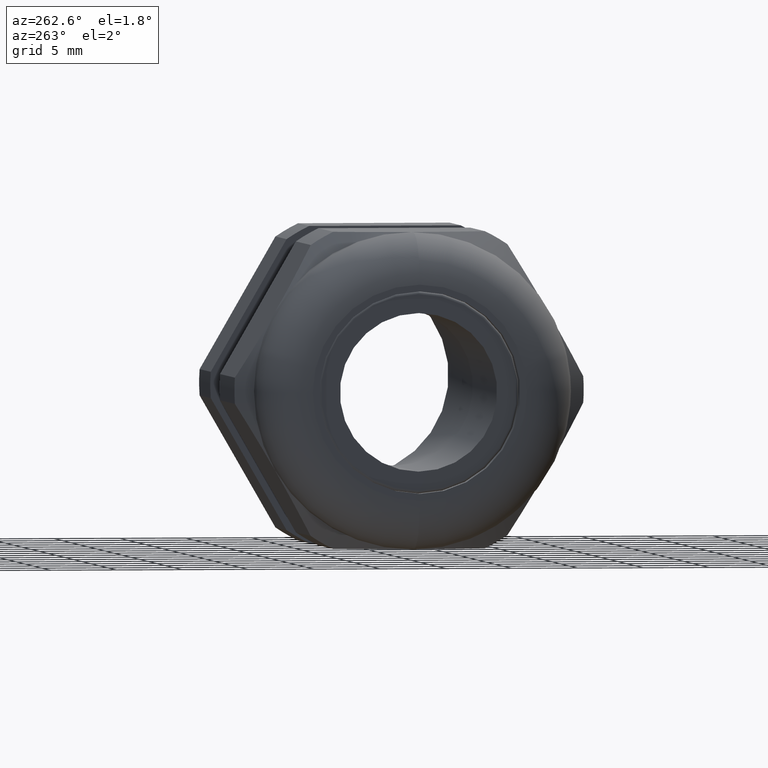
[diagram: clean part render]
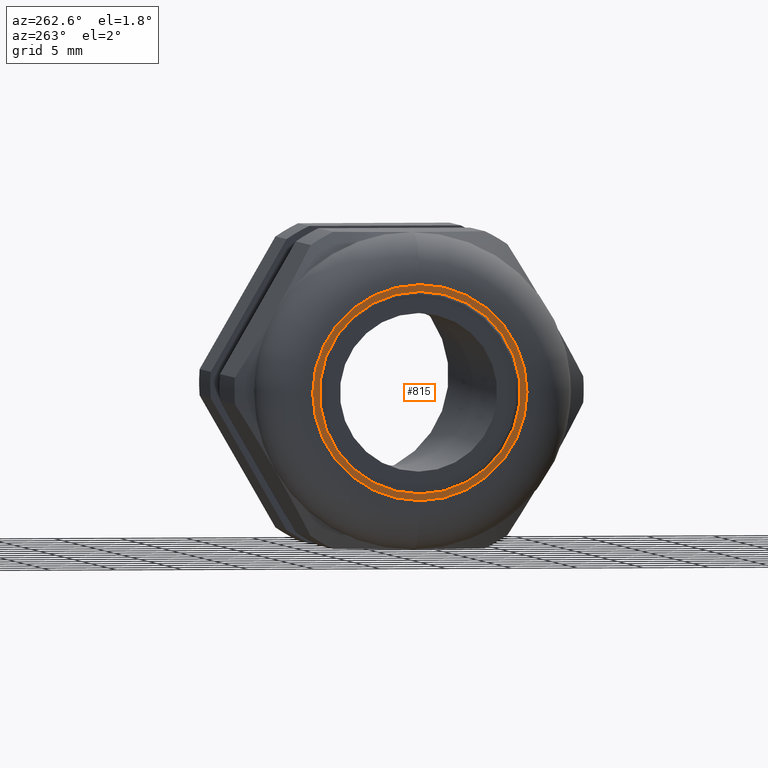
[diagram: same view with one face highlighted and labeled with its STEP entity id]
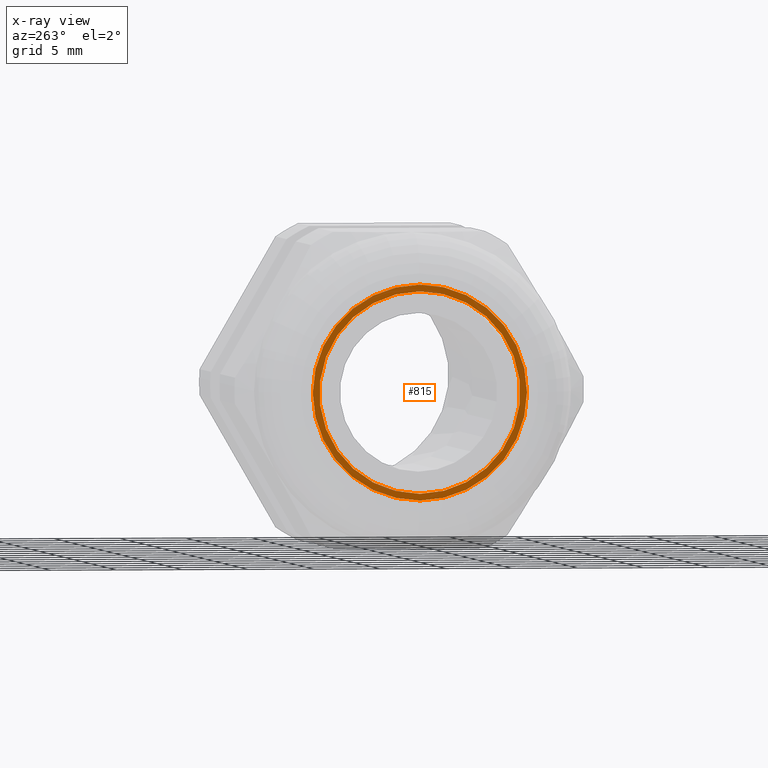
[diagram: x-ray of the same camera — body ghosted, the highlighted face saturated]
A machine part, auxiliary view. The second image highlights one B-rep face of the part: STEP entity #815.
The next image is the same camera in x-ray: the body ghosted, the highlighted face saturated — about 0% of this face is hidden behind the body in this view.
In plain terms, the highlighted planar face has unit normal (-1, 0, 0).
Its self-contained STEP definition (entity closure, byte-faithful):
#698 = EDGE_CURVE ( 'NONE', #699, #700, #2320, .T. ) ;
#699 = VERTEX_POINT ( 'NONE', #2316 ) ;
#700 = VERTEX_POINT ( 'NONE', #2315 ) ;
#815 = ADVANCED_FACE ( 'NONE', ( #2530, #2529 ), #2527, .T. ) ;
#816 = EDGE_LOOP ( 'NONE', ( #817, #818 ) ) ;
#817 = ORIENTED_EDGE ( 'NONE', *, *, #3908, .T. ) ;
#818 = ORIENTED_EDGE ( 'NONE', *, *, #819, .T. ) ;
#819 = EDGE_CURVE ( 'NONE', #3905, #3903, #2587, .T. ) ;
#820 = EDGE_LOOP ( 'NONE', ( #821, #876 ) ) ;
#821 = ORIENTED_EDGE ( 'NONE', *, *, #822, .T. ) ;
#822 = EDGE_CURVE ( 'NONE', #700, #699, #2583, .T. ) ;
#876 = ORIENTED_EDGE ( 'NONE', *, *, #698, .T. ) ;
#2315 = CARTESIAN_POINT ( 'NONE',  ( -1.369999999999999900, 0.0000000000000000000, -0.3000000000000001000 ) ) ;
#2316 = CARTESIAN_POINT ( 'NONE',  ( -1.369999999999999900, 3.673940397442061300E-017, 0.3000000000000001000 ) ) ;
#2317 = DIRECTION ( 'NONE',  ( 0.0000000000000000000, 0.0000000000000000000, -1.000000000000000000 ) ) ;
#2318 = DIRECTION ( 'NONE',  ( 1.000000000000000000, 0.0000000000000000000, 0.0000000000000000000 ) ) ;
#2319 = AXIS2_PLACEMENT_3D ( 'NONE', #2326, #2318, #2317 ) ;
#2320 = CIRCLE ( 'NONE', #2319, 0.3000000000000001000 ) ;
#2326 = CARTESIAN_POINT ( 'NONE',  ( -1.369999999999999900, 0.0000000000000000000, 0.0000000000000000000 ) ) ;
#2523 = DIRECTION ( 'NONE',  ( 0.0000000000000000000, 0.0000000000000000000, 1.000000000000000000 ) ) ;
#2524 = DIRECTION ( 'NONE',  ( -1.000000000000000000, 0.0000000000000000000, 0.0000000000000000000 ) ) ;
#2525 = CARTESIAN_POINT ( 'NONE',  ( -1.369999999999999900, 0.4699999999999999700, 0.0000000000000000000 ) ) ;
#2526 = AXIS2_PLACEMENT_3D ( 'NONE', #2525, #2524, #2523 ) ;
#2527 = PLANE ( 'NONE',  #2526 ) ;
#2528 = CARTESIAN_POINT ( 'NONE',  ( -1.369999999999999900, 0.0000000000000000000, 0.0000000000000000000 ) ) ;
#2529 = FACE_BOUND ( 'NONE', #820, .T. ) ;
#2530 = FACE_OUTER_BOUND ( 'NONE', #816, .T. ) ;
#2579 = DIRECTION ( 'NONE',  ( 0.0000000000000000000, 0.0000000000000000000, -1.000000000000000000 ) ) ;
#2580 = DIRECTION ( 'NONE',  ( 1.000000000000000000, 0.0000000000000000000, 0.0000000000000000000 ) ) ;
#2581 = CARTESIAN_POINT ( 'NONE',  ( -1.369999999999999900, 0.0000000000000000000, 0.0000000000000000000 ) ) ;
#2582 = AXIS2_PLACEMENT_3D ( 'NONE', #2581, #2580, #2579 ) ;
#2583 = CIRCLE ( 'NONE', #2582, 0.3000000000000001000 ) ;
#2584 = DIRECTION ( 'NONE',  ( 0.0000000000000000000, 0.0000000000000000000, 1.000000000000000000 ) ) ;
#2585 = DIRECTION ( 'NONE',  ( -1.000000000000000000, 0.0000000000000000000, 0.0000000000000000000 ) ) ;
#2586 = AXIS2_PLACEMENT_3D ( 'NONE', #2528, #2585, #2584 ) ;
#2587 = CIRCLE ( 'NONE', #2586, 0.3199999999999999500 ) ;
#3337 = CARTESIAN_POINT ( 'NONE',  ( -1.369999999999999900, 0.0000000000000000000, 0.0000000000000000000 ) ) ;
#3338 = CARTESIAN_POINT ( 'NONE',  ( -1.369999999999999900, 4.837354856632043700E-017, -0.3199999999999999500 ) ) ;
#3339 = CARTESIAN_POINT ( 'NONE',  ( -1.369999999999999900, 0.0000000000000000000, 0.3199999999999999500 ) ) ;
#3391 = DIRECTION ( 'NONE',  ( 0.0000000000000000000, 0.0000000000000000000, 1.000000000000000000 ) ) ;
#3392 = DIRECTION ( 'NONE',  ( -1.000000000000000000, 0.0000000000000000000, 0.0000000000000000000 ) ) ;
#3393 = AXIS2_PLACEMENT_3D ( 'NONE', #3337, #3392, #3391 ) ;
#3394 = CIRCLE ( 'NONE', #3393, 0.3199999999999999500 ) ;
#3903 = VERTEX_POINT ( 'NONE', #3339 ) ;
#3905 = VERTEX_POINT ( 'NONE', #3338 ) ;
#3908 = EDGE_CURVE ( 'NONE', #3903, #3905, #3394, .T. ) ;